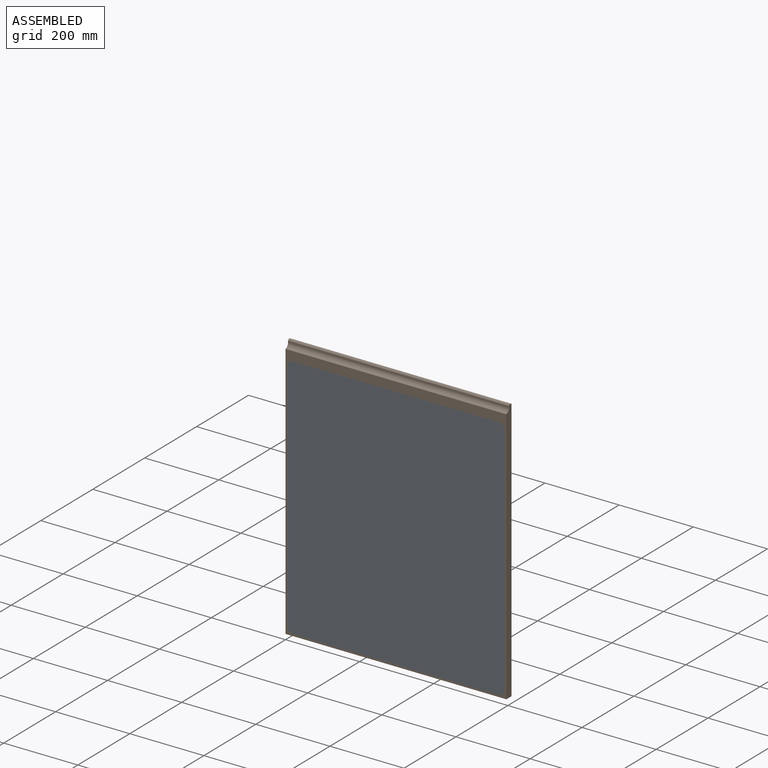
[diagram: assembled view]
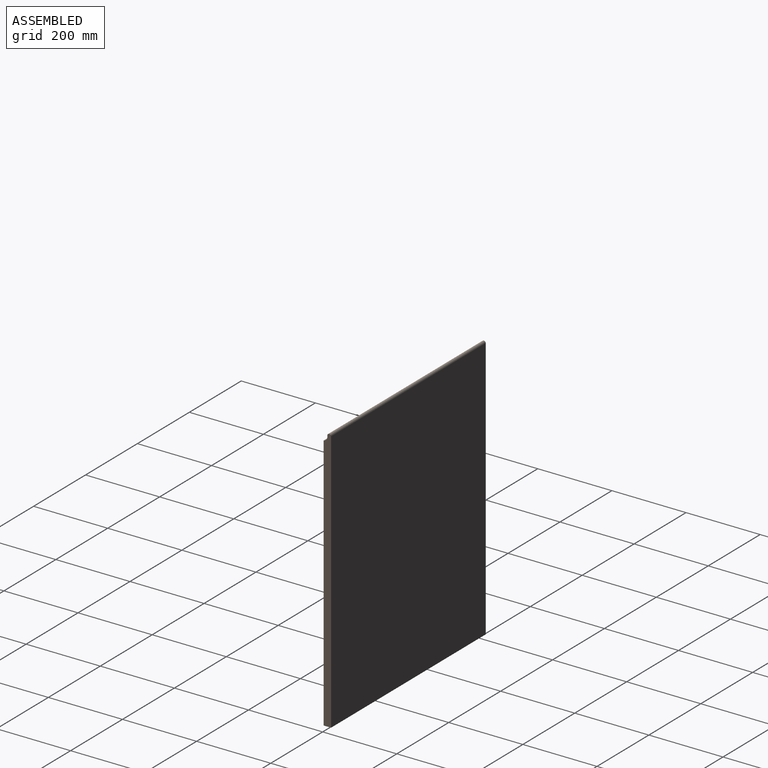
[diagram: assembled view, second angle]
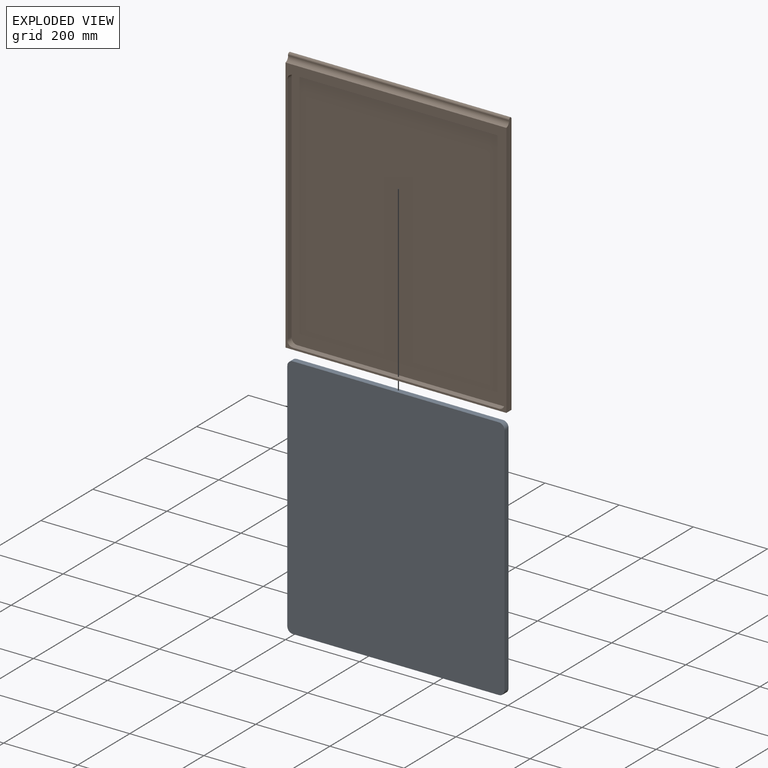
[diagram: exploded view]
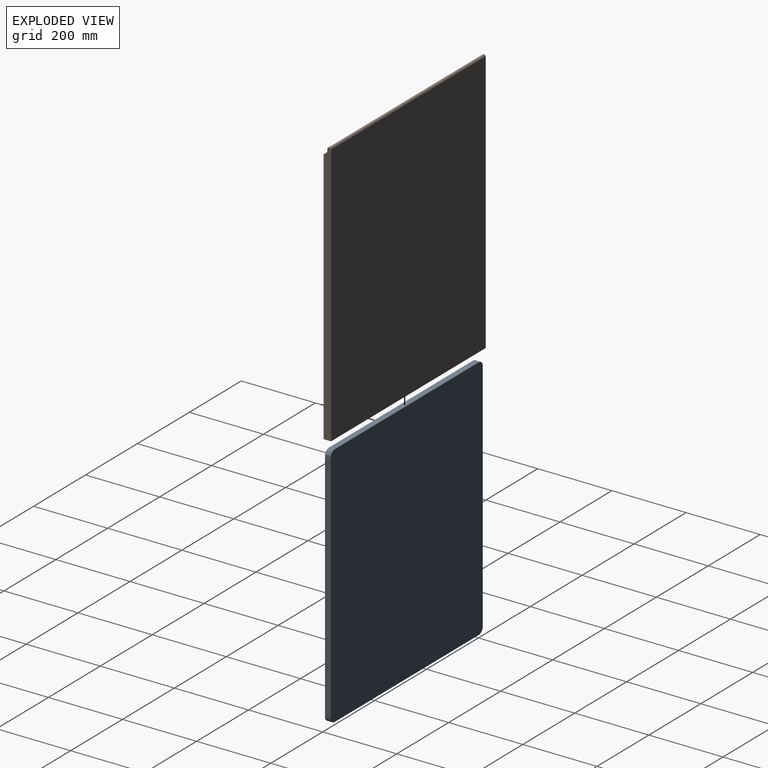
[diagram: exploded view, second angle]
ASSEMBLY  parts=2 mates=3
PART A: 10 faces, bbox 586x15.5x665 mm
  f0: plane 635x15.5mm, normal (1,0,0), area 9842.5mm2, adj f1,f7,f8,f9
  f1: cylinder r=15mm len=15.5mm, axis (0,1,0), area 365.2mm2, adj f0,f2,f8,f9
  f2: plane 556x15.5mm, normal (0,0,1), area 8618mm2, adj f1,f3,f8,f9
  f3: cylinder r=15mm len=15.5mm, axis (0,1,0), area 365.2mm2, adj f2,f4,f8,f9
  f4: plane 635x15.5mm, normal (-1,0,0), area 9842.5mm2, adj f3,f5,f8,f9
  f5: cylinder r=15mm len=15.5mm, axis (0,1,0), area 365.2mm2, adj f4,f6,f8,f9
  f6: plane 556x15.5mm, normal (0,0,-1), area 8618mm2, adj f5,f7,f8,f9
  f7: cylinder r=15mm len=15.5mm, axis (0,1,0), area 365.2mm2, adj f0,f6,f8,f9
  f8: plane 665x586mm, normal (0,-1,0), area 389496.9mm2, adj f0,f1,f2,f3,f4,f5,f6,f7
  f9: plane 665x586mm, normal (0,1,0), area 389496.9mm2, adj f0,f1,f2,f3,f4,f5,f6,f7
PART B: 17 faces, bbox 596x20x715 mm
  f0: plane 695x596mm, normal (0,-1,0), area 24723.1mm2, adj f1,f2,f4,f5,f6,f7,f8,f10
  f1: plane 715x20mm, normal (-1,0,0), area 14119mm2, adj f0,f3,f4,f14,f15,f16
  f2: plane 715x20mm, normal (1,0,0), area 14119mm2, adj f0,f3,f4,f14,f15,f16
  f3: plane 710x596mm, normal (0,1,0), area 423160mm2, adj f1,f2,f4,f14
  f4: plane 596x20mm, normal (0,0,-1), area 11920mm2, adj f0,f1,f2,f3
  f5: plane 635x16.5mm, normal (1,0,0), area 10477.5mm2, adj f0,f9,f10,f13
  f6: plane 556x16.5mm, normal (0,0,1), area 9174mm2, adj f0,f9,f10,f11
  f7: plane 635x16.5mm, normal (-1,0,0), area 10477.5mm2, adj f0,f9,f11,f12
  f8: plane 556x16.5mm, normal (0,0,-1), area 9174mm2, adj f0,f9,f12,f13
  f9: plane 665x586mm, normal (0,-1,0), area 389496.9mm2, adj f5,f6,f7,f8,f10,f11,f12,f13
  f10: cylinder r=15mm len=16.5mm, axis (0,-1,0), area 388.8mm2, adj f0,f5,f6,f9
  f11: cylinder r=15mm len=16.5mm, axis (0,1,0), area 388.8mm2, adj f0,f6,f7,f9
  f12: cylinder r=15mm len=16.5mm, axis (0,-1,0), area 388.8mm2, adj f0,f7,f8,f9
  f13: cylinder r=15mm len=16.5mm, axis (0,1,0), area 388.8mm2, adj f0,f5,f8,f9
  f14: cylinder r=5mm len=596mm, axis (-1,0,0), area 4681mm2, adj f1,f2,f3,f15
  f15: cylinder r=5.06mm len=596mm, axis (-1,0,0), area 5178.2mm2, adj f1,f2,f14,f16
  f16: cylinder r=12.59mm len=596mm, axis (-1,0,0), area 11423.5mm2, adj f0,f1,f2,f15
PLACE A t=(5,15.5,5)mm
PLACE B t=(0,20,0)mm
MATE planar B.f8 <-> A.f2  axis (0,0,-1) through (298,8.25,670)mm
MATE planar A.f4 <-> B.f5  axis (-1,0,0) through (5,7.75,337.5)mm
MATE planar B.f0 <-> A.f8  axis (0,-1,0) through (298,0,505.04)mm
